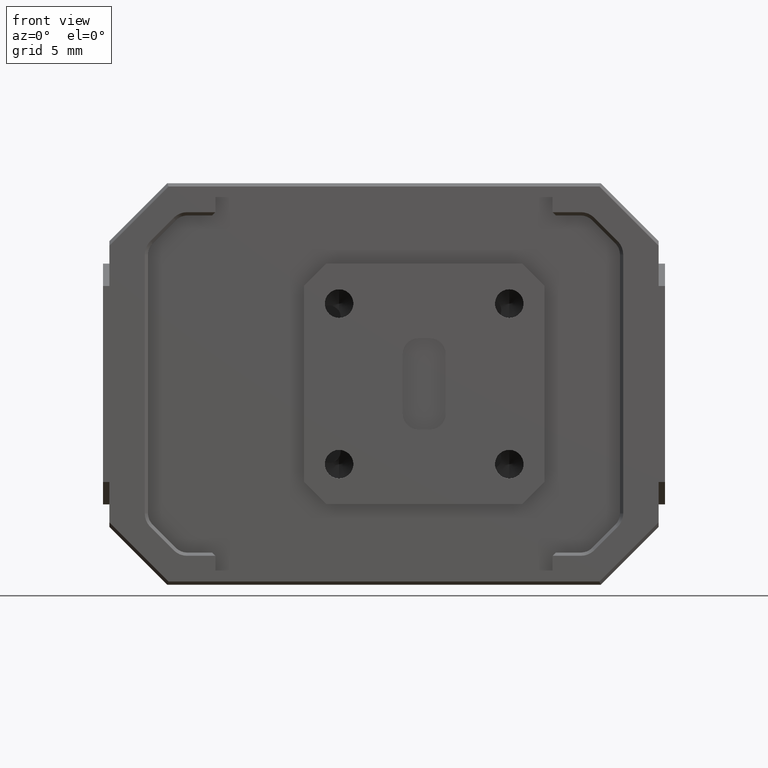
[diagram: clean part render]
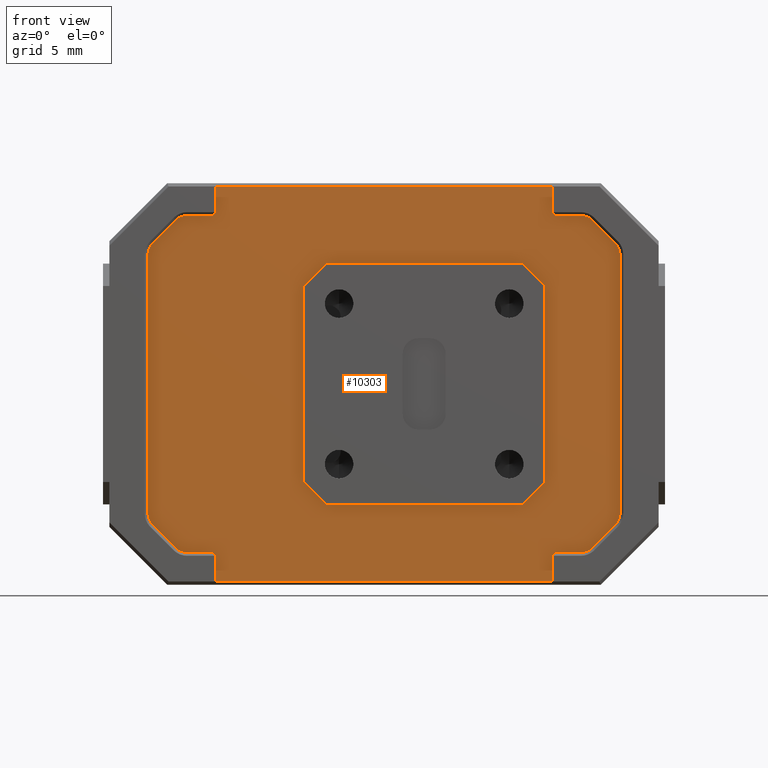
[diagram: same view with one face highlighted and labeled with its STEP entity id]
A machine part, front view. The second image highlights one B-rep face of the part: STEP entity #10303.
In plain terms, the highlighted planar face has unit normal (0, -1, 0).
Its self-contained STEP definition (entity closure, byte-faithful):
#4 = EDGE_CURVE ( 'NONE', #14069, #20379, #19369, .T. ) ;
#99 = DIRECTION ( 'NONE',  ( 0.000000000000000000, 0.000000000000000000, 1.000000000000000000 ) ) ;
#143 = CARTESIAN_POINT ( 'NONE',  ( 0.5000000000000007772, -0.3450000000000000289, -0.3050000000000000488 ) ) ;
#180 = VERTEX_POINT ( 'NONE', #24078 ) ;
#187 = VERTEX_POINT ( 'NONE', #22143 ) ;
#300 = EDGE_CURVE ( 'NONE', #8515, #10660, #20867, .T. ) ;
#321 = CARTESIAN_POINT ( 'NONE',  ( 0.7203553390593283590, -0.3450000000000000289, -0.4382233047033620155 ) ) ;
#563 = ORIENTED_EDGE ( 'NONE', *, *, #25706, .T. ) ;
#731 = FACE_BOUND ( 'NONE', #2775, .T. ) ;
#826 = DIRECTION ( 'NONE',  ( -0.7071067811865489050, 0.000000000000000000, 0.7071067811865461294 ) ) ;
#1040 = DIRECTION ( 'NONE',  ( 1.000000000000000000, 0.000000000000000000, 0.000000000000000000 ) ) ;
#1090 = EDGE_CURVE ( 'NONE', #11962, #5274, #19001, .T. ) ;
#1282 = DIRECTION ( 'NONE',  ( 0.000000000000000000, 0.000000000000000000, -1.000000000000000000 ) ) ;
#1321 = DIRECTION ( 'NONE',  ( 0.000000000000000000, 0.000000000000000000, 1.000000000000000000 ) ) ;
#1559 = LINE ( 'NONE', #26930, #10014 ) ;
#1747 = LINE ( 'NONE', #10196, #17112 ) ;
#1877 = DIRECTION ( 'NONE',  ( -0.7071067811865474617, 0.000000000000000000, 0.7071067811865474617 ) ) ;
#2111 = EDGE_CURVE ( 'NONE', #11144, #17190, #16788, .T. ) ;
#2154 = VECTOR ( 'NONE', #16854, 39.37007874015748143 ) ;
#2227 = EDGE_CURVE ( 'NONE', #18484, #16322, #19408, .T. ) ;
#2294 = CARTESIAN_POINT ( 'NONE',  ( -0.5350000000000006972, -0.3450000000000000289, 0.5250000000000012434 ) ) ;
#2421 = CARTESIAN_POINT ( 'NONE',  ( -0.6482233047033637563, -0.3450000000000000289, -0.5103553390593278394 ) ) ;
#2483 = LINE ( 'NONE', #24104, #11244 ) ;
#2775 = EDGE_LOOP ( 'NONE', ( #2961, #14182, #8867, #16495, #18198, #14629, #18395, #21684 ) ) ;
#2777 = DIRECTION ( 'NONE',  ( 0.000000000000000000, -1.000000000000000000, 0.000000000000000000 ) ) ;
#2925 = VERTEX_POINT ( 'NONE', #13467 ) ;
#2961 = ORIENTED_EDGE ( 'NONE', *, *, #21102, .F. ) ;
#2986 = AXIS2_PLACEMENT_3D ( 'NONE', #6951, #7364, #15428 ) ;
#3197 = CARTESIAN_POINT ( 'NONE',  ( 0.6128679656440356727, -0.3450000000000000289, -0.4750000000000006439 ) ) ;
#3489 = EDGE_CURVE ( 'NONE', #8166, #18334, #16145, .T. ) ;
#3506 = LINE ( 'NONE', #5576, #20644 ) ;
#3594 = VERTEX_POINT ( 'NONE', #3714 ) ;
#3603 = CARTESIAN_POINT ( 'NONE',  ( -0.5250000000000007994, -0.3450000000000000289, 0.6150000000000011013 ) ) ;
#3714 = CARTESIAN_POINT ( 'NONE',  ( -0.2500000000000006661, -0.3450000000000000289, 0.3050000000000000488 ) ) ;
#3941 = CARTESIAN_POINT ( 'NONE',  ( 0.5250000000000007994, -0.3450000000000000289, -0.6150000000000006573 ) ) ;
#4152 = DIRECTION ( 'NONE',  ( -1.612361738422996660E-16, 0.000000000000000000, 1.000000000000000000 ) ) ;
#4236 = CARTESIAN_POINT ( 'NONE',  ( 0.5350000000000010303, -0.3450000000000000289, -0.5250000000000006883 ) ) ;
#4295 = EDGE_CURVE ( 'NONE', #18375, #18484, #7401, .T. ) ;
#4379 = DIRECTION ( 'NONE',  ( 1.000000000000000000, 0.000000000000000000, 0.000000000000000000 ) ) ;
#4445 = ORIENTED_EDGE ( 'NONE', *, *, #21075, .T. ) ;
#4533 = EDGE_CURVE ( 'NONE', #15069, #9660, #12896, .T. ) ;
#4585 = AXIS2_PLACEMENT_3D ( 'NONE', #19136, #2777, #10969 ) ;
#4783 = DIRECTION ( 'NONE',  ( 0.000000000000000000, -1.000000000000000000, 0.000000000000000000 ) ) ;
#4910 = DIRECTION ( 'NONE',  ( 0.000000000000000000, 0.000000000000000000, -1.000000000000000000 ) ) ;
#4913 = VERTEX_POINT ( 'NONE', #15211 ) ;
#5100 = DIRECTION ( 'NONE',  ( -0.7071067811865486830, 0.000000000000000000, -0.7071067811865462405 ) ) ;
#5271 = DIRECTION ( 'NONE',  ( 0.000000000000000000, 0.000000000000000000, 1.000000000000000000 ) ) ;
#5274 = VERTEX_POINT ( 'NONE', #26005 ) ;
#5303 = EDGE_CURVE ( 'NONE', #20583, #2925, #6993, .T. ) ;
#5522 = EDGE_CURVE ( 'NONE', #17780, #18375, #23183, .T. ) ;
#5546 = ORIENTED_EDGE ( 'NONE', *, *, #5522, .T. ) ;
#5576 = CARTESIAN_POINT ( 'NONE',  ( -0.7350000000000008749, -0.3450000000000000289, -0.4235786437626896106 ) ) ;
#5609 = VERTEX_POINT ( 'NONE', #143 ) ;
#5670 = DIRECTION ( 'NONE',  ( 0.000000000000000000, -1.000000000000000000, 0.000000000000000000 ) ) ;
#5716 = DIRECTION ( 'NONE',  ( 1.612361738422996660E-16, -0.000000000000000000, -1.000000000000000000 ) ) ;
#5755 = DIRECTION ( 'NONE',  ( 1.000000000000000000, 0.000000000000000000, 0.000000000000000000 ) ) ;
#5885 = CARTESIAN_POINT ( 'NONE',  ( 0.5250000000000007994, -0.3450000000000000289, -0.5250000000000006883 ) ) ;
#5928 = CIRCLE ( 'NONE', #20541, 0.05000000000000007910 ) ;
#6073 = DIRECTION ( 'NONE',  ( 0.000000000000000000, 0.000000000000000000, 1.000000000000000000 ) ) ;
#6304 = VECTOR ( 'NONE', #21699, 39.37007874015748854 ) ;
#6442 = CARTESIAN_POINT ( 'NONE',  ( 0.5250000000000005773, -0.3450000000000000289, 0.5250000000000012434 ) ) ;
#6466 = AXIS2_PLACEMENT_3D ( 'NONE', #10234, #27010, #7880 ) ;
#6505 = CARTESIAN_POINT ( 'NONE',  ( 0.5250000000000005773, -0.3450000000000000289, 0.6150000000000011013 ) ) ;
#6811 = VECTOR ( 'NONE', #13794, 39.37007874015748143 ) ;
#6868 = CARTESIAN_POINT ( 'NONE',  ( 0.7350000000000007638, -0.3450000000000000289, 0.4235786437626908874 ) ) ;
#6951 = CARTESIAN_POINT ( 'NONE',  ( 0.000000000000000000, -0.3450000000000000289, 0.000000000000000000 ) ) ;
#6987 = CARTESIAN_POINT ( 'NONE',  ( 0.5250000000000007994, -0.3450000000000000289, -0.6150000000000006573 ) ) ;
#6993 = LINE ( 'NONE', #2294, #6304 ) ;
#7004 = DIRECTION ( 'NONE',  ( -1.000000000000000000, 0.000000000000000000, 0.000000000000000000 ) ) ;
#7050 = CARTESIAN_POINT ( 'NONE',  ( -0.6128679656440362278, -0.3450000000000000289, -0.5250000000000006883 ) ) ;
#7237 = ORIENTED_EDGE ( 'NONE', *, *, #4533, .T. ) ;
#7250 = CIRCLE ( 'NONE', #4585, 0.05000000000000007910 ) ;
#7306 = EDGE_CURVE ( 'NONE', #17875, #187, #19398, .T. ) ;
#7364 = DIRECTION ( 'NONE',  ( 0.000000000000000000, -1.000000000000000000, 0.000000000000000000 ) ) ;
#7384 = EDGE_CURVE ( 'NONE', #24797, #8166, #2483, .T. ) ;
#7401 = LINE ( 'NONE', #6987, #11858 ) ;
#7518 = CARTESIAN_POINT ( 'NONE',  ( -0.1800000000000003542, -0.3450000000000000289, 0.3750000000000003886 ) ) ;
#7540 = CARTESIAN_POINT ( 'NONE',  ( -0.5250000000000007994, -0.3450000000000000289, 0.5250000000000012434 ) ) ;
#7628 = DIRECTION ( 'NONE',  ( 0.7071067811865489050, -0.000000000000000000, -0.7071067811865461294 ) ) ;
#7759 = EDGE_CURVE ( 'NONE', #10860, #8515, #25863, .T. ) ;
#7791 = CARTESIAN_POINT ( 'NONE',  ( -0.7203553390593283590, -0.3450000000000000289, 0.4382233047033632922 ) ) ;
#7843 = VECTOR ( 'NONE', #4910, 39.37007874015748143 ) ;
#7880 = DIRECTION ( 'NONE',  ( 0.000000000000000000, 0.000000000000000000, 1.000000000000000000 ) ) ;
#8166 = VERTEX_POINT ( 'NONE', #7791 ) ;
#8200 = DIRECTION ( 'NONE',  ( 0.000000000000000000, 0.000000000000000000, -1.000000000000000000 ) ) ;
#8504 = VECTOR ( 'NONE', #1877, 39.37007874015748854 ) ;
#8515 = VERTEX_POINT ( 'NONE', #23469 ) ;
#8552 = CARTESIAN_POINT ( 'NONE',  ( 0.5000000000000007772, -0.3450000000000000289, 0.3050000000000002709 ) ) ;
#8558 = LINE ( 'NONE', #22867, #20677 ) ;
#8690 = VERTEX_POINT ( 'NONE', #8552 ) ;
#8774 = CARTESIAN_POINT ( 'NONE',  ( 0.7203553390593280259, -0.3450000000000000289, 0.4382233047033635698 ) ) ;
#8867 = ORIENTED_EDGE ( 'NONE', *, *, #9635, .F. ) ;
#8961 = EDGE_CURVE ( 'NONE', #25485, #18152, #9794, .T. ) ;
#9024 = VECTOR ( 'NONE', #17326, 39.37007874015748143 ) ;
#9222 = CARTESIAN_POINT ( 'NONE',  ( -0.6128679656440362278, -0.3450000000000000289, -0.4750000000000006439 ) ) ;
#9256 = CARTESIAN_POINT ( 'NONE',  ( 0.7350000000000008749, -0.3450000000000000289, -0.4028679656440347090 ) ) ;
#9458 = LINE ( 'NONE', #9609, #21961 ) ;
#9471 = ORIENTED_EDGE ( 'NONE', *, *, #15343, .T. ) ;
#9609 = CARTESIAN_POINT ( 'NONE',  ( 0.5000000000000007772, -0.3450000000000000289, 0.3050000000000002709 ) ) ;
#9635 = EDGE_CURVE ( 'NONE', #5609, #8690, #1747, .T. ) ;
#9660 = VERTEX_POINT ( 'NONE', #2421 ) ;
#9761 = ORIENTED_EDGE ( 'NONE', *, *, #2227, .T. ) ;
#9794 = LINE ( 'NONE', #5885, #15326 ) ;
#9895 = CARTESIAN_POINT ( 'NONE',  ( 0.7350000000000007638, -0.3450000000000000289, 0.4028679656440361523 ) ) ;
#9923 = CARTESIAN_POINT ( 'NONE',  ( 0.5350000000000010303, -0.3450000000000000289, -0.5250000000000006883 ) ) ;
#9926 = CARTESIAN_POINT ( 'NONE',  ( 0.5250000000000007994, -0.3450000000000000289, -0.5350000000000008082 ) ) ;
#9935 = CIRCLE ( 'NONE', #13474, 0.05000000000000007910 ) ;
#9964 = EDGE_CURVE ( 'NONE', #5609, #10183, #24864, .T. ) ;
#10014 = VECTOR ( 'NONE', #18329, 39.37007874015748143 ) ;
#10133 = ORIENTED_EDGE ( 'NONE', *, *, #15970, .T. ) ;
#10166 = AXIS2_PLACEMENT_3D ( 'NONE', #18695, #25224, #99 ) ;
#10183 = VERTEX_POINT ( 'NONE', #23599 ) ;
#10196 = CARTESIAN_POINT ( 'NONE',  ( 0.5000000000000007772, -0.3450000000000000289, 0.3750000000000003886 ) ) ;
#10207 = LINE ( 'NONE', #4236, #23488 ) ;
#10234 = CARTESIAN_POINT ( 'NONE',  ( 0.6850000000000009415, -0.3450000000000000289, -0.4028679656440347090 ) ) ;
#10303 = ADVANCED_FACE ( 'NONE', ( #731, #17900 ), #26361, .T. ) ;
#10321 = EDGE_CURVE ( 'NONE', #20586, #20583, #14432, .T. ) ;
#10426 = ORIENTED_EDGE ( 'NONE', *, *, #1090, .T. ) ;
#10467 = ORIENTED_EDGE ( 'NONE', *, *, #18348, .T. ) ;
#10639 = DIRECTION ( 'NONE',  ( 0.7071067811865474617, -0.000000000000000000, -0.7071067811865474617 ) ) ;
#10660 = VERTEX_POINT ( 'NONE', #21489 ) ;
#10837 = VECTOR ( 'NONE', #4379, 39.37007874015748143 ) ;
#10860 = VERTEX_POINT ( 'NONE', #12452 ) ;
#10969 = DIRECTION ( 'NONE',  ( 0.000000000000000000, 0.000000000000000000, 1.000000000000000000 ) ) ;
#11024 = DIRECTION ( 'NONE',  ( 0.000000000000000000, 0.000000000000000000, 1.000000000000000000 ) ) ;
#11098 = CARTESIAN_POINT ( 'NONE',  ( -0.7350000000000008749, -0.3450000000000000289, -0.4235786437626896106 ) ) ;
#11144 = VERTEX_POINT ( 'NONE', #9256 ) ;
#11244 = VECTOR ( 'NONE', #5100, 39.37007874015748854 ) ;
#11346 = EDGE_CURVE ( 'NONE', #17475, #17466, #19449, .T. ) ;
#11407 = CIRCLE ( 'NONE', #18478, 0.05000000000000007910 ) ;
#11858 = VECTOR ( 'NONE', #1040, 39.37007874015748143 ) ;
#11944 = LINE ( 'NONE', #26363, #21524 ) ;
#11962 = VERTEX_POINT ( 'NONE', #7050 ) ;
#11982 = CARTESIAN_POINT ( 'NONE',  ( -0.7350000000000009859, -0.3450000000000000289, 0.4028679656440359302 ) ) ;
#12194 = EDGE_CURVE ( 'NONE', #20379, #10860, #22145, .T. ) ;
#12268 = VECTOR ( 'NONE', #20555, 39.37007874015748143 ) ;
#12337 = ORIENTED_EDGE ( 'NONE', *, *, #26738, .T. ) ;
#12451 = DIRECTION ( 'NONE',  ( 0.000000000000000000, -1.000000000000000000, 0.000000000000000000 ) ) ;
#12452 = CARTESIAN_POINT ( 'NONE',  ( 0.6128679656440362278, -0.3450000000000000289, 0.5250000000000012434 ) ) ;
#12597 = EDGE_CURVE ( 'NONE', #16322, #25485, #10207, .T. ) ;
#12896 = LINE ( 'NONE', #11098, #26255 ) ;
#13090 = DIRECTION ( 'NONE',  ( 0.000000000000000000, 0.000000000000000000, 1.000000000000000000 ) ) ;
#13153 = CARTESIAN_POINT ( 'NONE',  ( -0.2500000000000006661, -0.3450000000000000289, -0.3050000000000005485 ) ) ;
#13162 = CARTESIAN_POINT ( 'NONE',  ( 0.5250000000000007994, -0.3450000000000000289, -0.6250000000000006661 ) ) ;
#13379 = CARTESIAN_POINT ( 'NONE',  ( 0.6335786437626909073, -0.3450000000000000289, 0.5250000000000012434 ) ) ;
#13467 = CARTESIAN_POINT ( 'NONE',  ( -0.5350000000000006972, -0.3450000000000000289, 0.5250000000000012434 ) ) ;
#13474 = AXIS2_PLACEMENT_3D ( 'NONE', #22536, #15883, #1321 ) ;
#13578 = DIRECTION ( 'NONE',  ( 0.000000000000000000, 0.000000000000000000, 1.000000000000000000 ) ) ;
#13794 = DIRECTION ( 'NONE',  ( -1.000000000000000000, 0.000000000000000000, 0.000000000000000000 ) ) ;
#13849 = CARTESIAN_POINT ( 'NONE',  ( -0.6850000000000010525, -0.3450000000000000289, 0.4028679656440359302 ) ) ;
#13891 = VECTOR ( 'NONE', #4152, 39.37007874015748143 ) ;
#14069 = VERTEX_POINT ( 'NONE', #8774 ) ;
#14071 = LINE ( 'NONE', #7540, #6811 ) ;
#14182 = ORIENTED_EDGE ( 'NONE', *, *, #15439, .T. ) ;
#14432 = LINE ( 'NONE', #22907, #17606 ) ;
#14487 = CIRCLE ( 'NONE', #17563, 0.05000000000000007910 ) ;
#14629 = ORIENTED_EDGE ( 'NONE', *, *, #7306, .T. ) ;
#14994 = CARTESIAN_POINT ( 'NONE',  ( -0.1799999999999998268, -0.3450000000000000289, -0.3750000000000006661 ) ) ;
#15069 = VERTEX_POINT ( 'NONE', #19028 ) ;
#15081 = CARTESIAN_POINT ( 'NONE',  ( -0.1800000000000001044, -0.3450000000000000289, 0.3750000000000003886 ) ) ;
#15126 = CARTESIAN_POINT ( 'NONE',  ( 0.6482233047033636453, -0.3450000000000000289, 0.5103553390593286165 ) ) ;
#15200 = DIRECTION ( 'NONE',  ( -0.7071067811865474617, 0.000000000000000000, 0.7071067811865474617 ) ) ;
#15211 = CARTESIAN_POINT ( 'NONE',  ( -0.6128679656440358947, -0.3450000000000000289, 0.5250000000000012434 ) ) ;
#15326 = VECTOR ( 'NONE', #5755, 39.37007874015748143 ) ;
#15343 = EDGE_CURVE ( 'NONE', #22856, #20586, #11944, .T. ) ;
#15428 = DIRECTION ( 'NONE',  ( 0.000000000000000000, 0.000000000000000000, 1.000000000000000000 ) ) ;
#15439 = EDGE_CURVE ( 'NONE', #180, #8690, #9458, .T. ) ;
#15883 = DIRECTION ( 'NONE',  ( 0.000000000000000000, -1.000000000000000000, 0.000000000000000000 ) ) ;
#15970 = EDGE_CURVE ( 'NONE', #17466, #11144, #18868, .T. ) ;
#15985 = DIRECTION ( 'NONE',  ( 0.7071067811865461294, -0.000000000000000000, 0.7071067811865489050 ) ) ;
#16145 = CIRCLE ( 'NONE', #21183, 0.05000000000000007910 ) ;
#16227 = CARTESIAN_POINT ( 'NONE',  ( -0.5250000000000007994, -0.3450000000000000289, 0.5350000000000011413 ) ) ;
#16228 = ORIENTED_EDGE ( 'NONE', *, *, #18448, .T. ) ;
#16322 = VERTEX_POINT ( 'NONE', #9926 ) ;
#16495 = ORIENTED_EDGE ( 'NONE', *, *, #9964, .T. ) ;
#16524 = ORIENTED_EDGE ( 'NONE', *, *, #3489, .T. ) ;
#16788 = LINE ( 'NONE', #25248, #13891 ) ;
#16818 = CARTESIAN_POINT ( 'NONE',  ( 0.6335786437626904632, -0.3450000000000000289, -0.5250000000000006883 ) ) ;
#16854 = DIRECTION ( 'NONE',  ( 0.000000000000000000, 0.000000000000000000, 1.000000000000000000 ) ) ;
#16985 = LINE ( 'NONE', #23388, #10837 ) ;
#17112 = VECTOR ( 'NONE', #11024, 39.37007874015748143 ) ;
#17190 = VERTEX_POINT ( 'NONE', #9895 ) ;
#17326 = DIRECTION ( 'NONE',  ( 0.000000000000000000, 0.000000000000000000, 1.000000000000000000 ) ) ;
#17367 = ORIENTED_EDGE ( 'NONE', *, *, #8961, .T. ) ;
#17466 = VERTEX_POINT ( 'NONE', #321 ) ;
#17475 = VERTEX_POINT ( 'NONE', #21388 ) ;
#17563 = AXIS2_PLACEMENT_3D ( 'NONE', #25077, #12451, #6073 ) ;
#17606 = VECTOR ( 'NONE', #1282, 39.37007874015748143 ) ;
#17780 = VERTEX_POINT ( 'NONE', #21092 ) ;
#17833 = EDGE_CURVE ( 'NONE', #4913, #24797, #7250, .T. ) ;
#17875 = VERTEX_POINT ( 'NONE', #14994 ) ;
#17900 = FACE_OUTER_BOUND ( 'NONE', #21740, .T. ) ;
#18010 = ORIENTED_EDGE ( 'NONE', *, *, #4295, .T. ) ;
#18020 = EDGE_CURVE ( 'NONE', #18152, #17475, #5928, .T. ) ;
#18152 = VERTEX_POINT ( 'NONE', #20916 ) ;
#18181 = DIRECTION ( 'NONE',  ( -1.000000000000000000, 0.000000000000000000, 0.000000000000000000 ) ) ;
#18198 = ORIENTED_EDGE ( 'NONE', *, *, #26822, .F. ) ;
#18329 = DIRECTION ( 'NONE',  ( -1.000000000000000000, 0.000000000000000000, 0.000000000000000000 ) ) ;
#18334 = VERTEX_POINT ( 'NONE', #11982 ) ;
#18348 = EDGE_CURVE ( 'NONE', #2925, #4913, #14071, .T. ) ;
#18375 = VERTEX_POINT ( 'NONE', #26670 ) ;
#18395 = ORIENTED_EDGE ( 'NONE', *, *, #25693, .F. ) ;
#18448 = EDGE_CURVE ( 'NONE', #17190, #14069, #9935, .T. ) ;
#18478 = AXIS2_PLACEMENT_3D ( 'NONE', #9222, #4783, #13090 ) ;
#18484 = VERTEX_POINT ( 'NONE', #3941 ) ;
#18695 = CARTESIAN_POINT ( 'NONE',  ( 0.6128679656440362278, -0.3450000000000000289, 0.4750000000000011990 ) ) ;
#18868 = CIRCLE ( 'NONE', #6466, 0.05000000000000007910 ) ;
#19001 = LINE ( 'NONE', #23166, #22245 ) ;
#19028 = CARTESIAN_POINT ( 'NONE',  ( -0.7203553390593283590, -0.3450000000000000289, -0.4382233047033622375 ) ) ;
#19136 = CARTESIAN_POINT ( 'NONE',  ( -0.6128679656440358947, -0.3450000000000000289, 0.4750000000000011990 ) ) ;
#19369 = LINE ( 'NONE', #6868, #22228 ) ;
#19398 = LINE ( 'NONE', #13153, #25457 ) ;
#19408 = LINE ( 'NONE', #13162, #9024 ) ;
#19449 = LINE ( 'NONE', #16818, #26962 ) ;
#19524 = ORIENTED_EDGE ( 'NONE', *, *, #10321, .T. ) ;
#20379 = VERTEX_POINT ( 'NONE', #15126 ) ;
#20541 = AXIS2_PLACEMENT_3D ( 'NONE', #3197, #22467, #5271 ) ;
#20555 = DIRECTION ( 'NONE',  ( -0.7071067811865461294, -0.000000000000000000, -0.7071067811865489050 ) ) ;
#20583 = VERTEX_POINT ( 'NONE', #16227 ) ;
#20586 = VERTEX_POINT ( 'NONE', #3603 ) ;
#20644 = VECTOR ( 'NONE', #5716, 39.37007874015748143 ) ;
#20677 = VECTOR ( 'NONE', #10639, 39.37007874015748854 ) ;
#20722 = VERTEX_POINT ( 'NONE', #21336 ) ;
#20857 = ORIENTED_EDGE ( 'NONE', *, *, #4, .T. ) ;
#20867 = LINE ( 'NONE', #24629, #8504 ) ;
#20916 = CARTESIAN_POINT ( 'NONE',  ( 0.6128679656440355616, -0.3450000000000000289, -0.5250000000000006883 ) ) ;
#21075 = EDGE_CURVE ( 'NONE', #18334, #20722, #3506, .T. ) ;
#21092 = CARTESIAN_POINT ( 'NONE',  ( -0.5250000000000007994, -0.3450000000000000289, -0.5350000000000008082 ) ) ;
#21102 = EDGE_CURVE ( 'NONE', #180, #25231, #1559, .T. ) ;
#21183 = AXIS2_PLACEMENT_3D ( 'NONE', #13849, #5670, #13578 ) ;
#21336 = CARTESIAN_POINT ( 'NONE',  ( -0.7350000000000008749, -0.3450000000000000289, -0.4028679656440350421 ) ) ;
#21376 = VECTOR ( 'NONE', #8200, 39.37007874015748143 ) ;
#21388 = CARTESIAN_POINT ( 'NONE',  ( 0.6482233047033632012, -0.3450000000000000289, -0.5103553390593279504 ) ) ;
#21412 = LINE ( 'NONE', #21973, #7843 ) ;
#21489 = CARTESIAN_POINT ( 'NONE',  ( 0.5250000000000005773, -0.3450000000000000289, 0.5350000000000011413 ) ) ;
#21497 = DIRECTION ( 'NONE',  ( 0.7071067811865447972, -0.000000000000000000, -0.7071067811865501263 ) ) ;
#21524 = VECTOR ( 'NONE', #18181, 39.37007874015748143 ) ;
#21545 = ORIENTED_EDGE ( 'NONE', *, *, #25065, .T. ) ;
#21684 = ORIENTED_EDGE ( 'NONE', *, *, #22209, .T. ) ;
#21699 = DIRECTION ( 'NONE',  ( -0.7071067811865474617, -0.000000000000000000, -0.7071067811865474617 ) ) ;
#21740 = EDGE_LOOP ( 'NONE', ( #5546, #18010, #9761, #24102, #17367, #22921, #23556, #10133, #23302, #16228, #20857, #25259, #24504, #26958, #12337, #9471, #19524, #26057, #10467, #22633, #23758, #16524, #4445, #23456, #7237, #563, #10426, #21545 ) ) ;
#21961 = VECTOR ( 'NONE', #7628, 39.37007874015748143 ) ;
#21973 = CARTESIAN_POINT ( 'NONE',  ( -0.2500000000000006661, -0.3450000000000000289, 0.3750000000000003886 ) ) ;
#22143 = CARTESIAN_POINT ( 'NONE',  ( -0.2500000000000006661, -0.3450000000000000289, -0.3050000000000002709 ) ) ;
#22145 = CIRCLE ( 'NONE', #10166, 0.05000000000000007910 ) ;
#22209 = EDGE_CURVE ( 'NONE', #3594, #25231, #26522, .T. ) ;
#22228 = VECTOR ( 'NONE', #15200, 39.37007874015748854 ) ;
#22245 = VECTOR ( 'NONE', #23447, 39.37007874015748143 ) ;
#22467 = DIRECTION ( 'NONE',  ( 0.000000000000000000, -1.000000000000000000, 0.000000000000000000 ) ) ;
#22536 = CARTESIAN_POINT ( 'NONE',  ( 0.6850000000000007194, -0.3450000000000000289, 0.4028679656440362078 ) ) ;
#22633 = ORIENTED_EDGE ( 'NONE', *, *, #17833, .T. ) ;
#22679 = VECTOR ( 'NONE', #7004, 39.37007874015748143 ) ;
#22856 = VERTEX_POINT ( 'NONE', #6505 ) ;
#22867 = CARTESIAN_POINT ( 'NONE',  ( -0.5250000000000007994, -0.3450000000000000289, -0.5350000000000008082 ) ) ;
#22907 = CARTESIAN_POINT ( 'NONE',  ( -0.5250000000000007994, -0.3450000000000000289, 0.5250000000000012434 ) ) ;
#22921 = ORIENTED_EDGE ( 'NONE', *, *, #18020, .T. ) ;
#22940 = VECTOR ( 'NONE', #15985, 39.37007874015748143 ) ;
#23109 = LINE ( 'NONE', #6442, #2154 ) ;
#23166 = CARTESIAN_POINT ( 'NONE',  ( -0.6335786437626910184, -0.3450000000000000289, -0.5250000000000006883 ) ) ;
#23183 = LINE ( 'NONE', #25388, #21376 ) ;
#23302 = ORIENTED_EDGE ( 'NONE', *, *, #2111, .T. ) ;
#23388 = CARTESIAN_POINT ( 'NONE',  ( 0.5000000000000007772, -0.3450000000000000289, -0.3750000000000006661 ) ) ;
#23447 = DIRECTION ( 'NONE',  ( 1.000000000000000000, 0.000000000000000000, 0.000000000000000000 ) ) ;
#23456 = ORIENTED_EDGE ( 'NONE', *, *, #25185, .T. ) ;
#23469 = CARTESIAN_POINT ( 'NONE',  ( 0.5350000000000004752, -0.3450000000000000289, 0.5250000000000012434 ) ) ;
#23488 = VECTOR ( 'NONE', #25321, 39.37007874015748854 ) ;
#23556 = ORIENTED_EDGE ( 'NONE', *, *, #11346, .T. ) ;
#23599 = CARTESIAN_POINT ( 'NONE',  ( 0.4300000000000002709, -0.3450000000000000289, -0.3750000000000006661 ) ) ;
#23758 = ORIENTED_EDGE ( 'NONE', *, *, #7384, .T. ) ;
#24078 = CARTESIAN_POINT ( 'NONE',  ( 0.4299999999999999933, -0.3450000000000000289, 0.3750000000000003886 ) ) ;
#24102 = ORIENTED_EDGE ( 'NONE', *, *, #12597, .T. ) ;
#24104 = CARTESIAN_POINT ( 'NONE',  ( -0.6335786437626906853, -0.3450000000000000289, 0.5250000000000012434 ) ) ;
#24456 = CARTESIAN_POINT ( 'NONE',  ( 0.4300000000000002709, -0.3450000000000000289, -0.3750000000000006661 ) ) ;
#24504 = ORIENTED_EDGE ( 'NONE', *, *, #7759, .T. ) ;
#24629 = CARTESIAN_POINT ( 'NONE',  ( 0.5250000000000005773, -0.3450000000000000289, 0.5350000000000011413 ) ) ;
#24797 = VERTEX_POINT ( 'NONE', #27389 ) ;
#24864 = LINE ( 'NONE', #24456, #12268 ) ;
#25065 = EDGE_CURVE ( 'NONE', #5274, #17780, #8558, .T. ) ;
#25077 = CARTESIAN_POINT ( 'NONE',  ( -0.6850000000000009415, -0.3450000000000000289, -0.4028679656440350421 ) ) ;
#25185 = EDGE_CURVE ( 'NONE', #20722, #15069, #14487, .T. ) ;
#25224 = DIRECTION ( 'NONE',  ( 0.000000000000000000, -1.000000000000000000, 0.000000000000000000 ) ) ;
#25231 = VERTEX_POINT ( 'NONE', #15081 ) ;
#25248 = CARTESIAN_POINT ( 'NONE',  ( 0.7350000000000008749, -0.3450000000000000289, -0.4235786437626893886 ) ) ;
#25259 = ORIENTED_EDGE ( 'NONE', *, *, #12194, .T. ) ;
#25281 = DIRECTION ( 'NONE',  ( 0.7071067811865460184, 0.000000000000000000, 0.7071067811865489050 ) ) ;
#25321 = DIRECTION ( 'NONE',  ( 0.7071067811865474617, -0.000000000000000000, 0.7071067811865474617 ) ) ;
#25388 = CARTESIAN_POINT ( 'NONE',  ( -0.5250000000000007994, -0.3450000000000000289, -0.6250000000000006661 ) ) ;
#25457 = VECTOR ( 'NONE', #826, 39.37007874015748143 ) ;
#25485 = VERTEX_POINT ( 'NONE', #9923 ) ;
#25693 = EDGE_CURVE ( 'NONE', #3594, #187, #21412, .T. ) ;
#25706 = EDGE_CURVE ( 'NONE', #9660, #11962, #11407, .T. ) ;
#25863 = LINE ( 'NONE', #13379, #22679 ) ;
#26005 = CARTESIAN_POINT ( 'NONE',  ( -0.5350000000000010303, -0.3450000000000000289, -0.5250000000000006883 ) ) ;
#26057 = ORIENTED_EDGE ( 'NONE', *, *, #5303, .T. ) ;
#26255 = VECTOR ( 'NONE', #21497, 39.37007874015748854 ) ;
#26361 = PLANE ( 'NONE',  #2986 ) ;
#26363 = CARTESIAN_POINT ( 'NONE',  ( -0.5250000000000007994, -0.3450000000000000289, 0.6150000000000011013 ) ) ;
#26522 = LINE ( 'NONE', #7518, #22940 ) ;
#26670 = CARTESIAN_POINT ( 'NONE',  ( -0.5250000000000007994, -0.3450000000000000289, -0.6150000000000007683 ) ) ;
#26738 = EDGE_CURVE ( 'NONE', #10660, #22856, #23109, .T. ) ;
#26822 = EDGE_CURVE ( 'NONE', #17875, #10183, #16985, .T. ) ;
#26930 = CARTESIAN_POINT ( 'NONE',  ( 0.5000000000000007772, -0.3450000000000000289, 0.3750000000000003886 ) ) ;
#26958 = ORIENTED_EDGE ( 'NONE', *, *, #300, .T. ) ;
#26962 = VECTOR ( 'NONE', #25281, 39.37007874015748854 ) ;
#27010 = DIRECTION ( 'NONE',  ( 0.000000000000000000, -1.000000000000000000, 0.000000000000000000 ) ) ;
#27389 = CARTESIAN_POINT ( 'NONE',  ( -0.6482233047033633122, -0.3450000000000000289, 0.5103553390593286165 ) ) ;